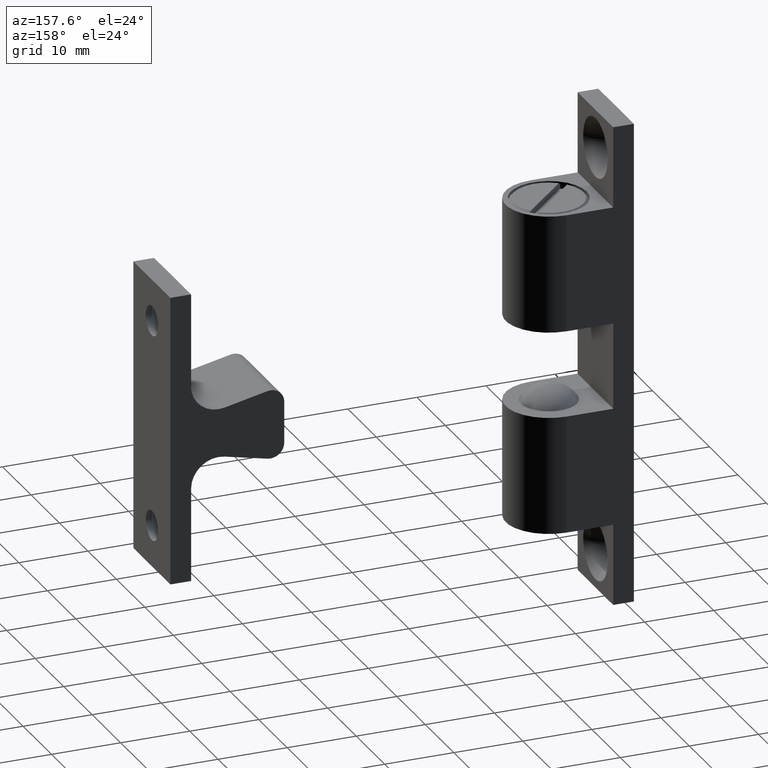
[diagram: clean part render]
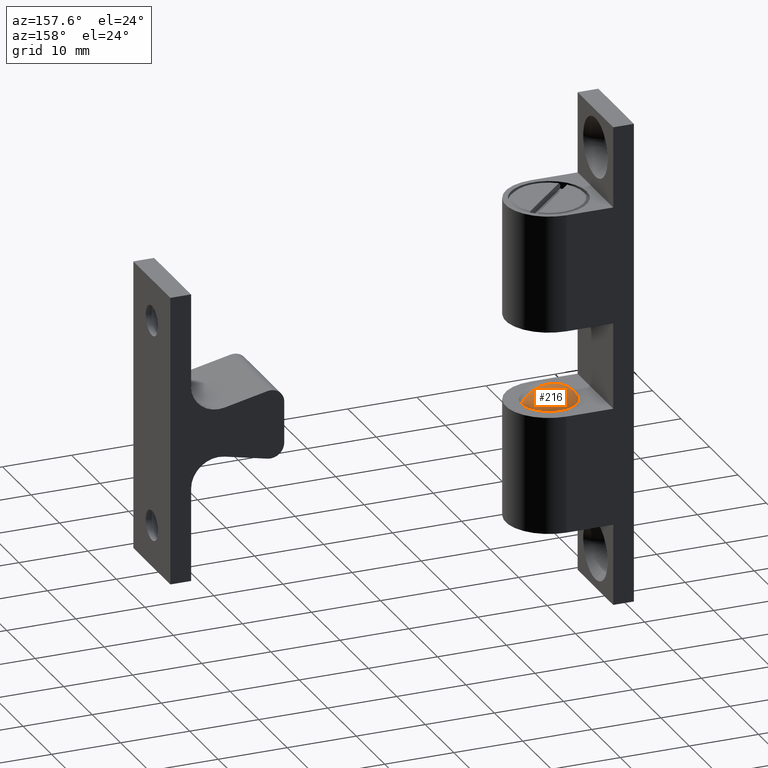
[diagram: same view with one face highlighted and labeled with its STEP entity id]
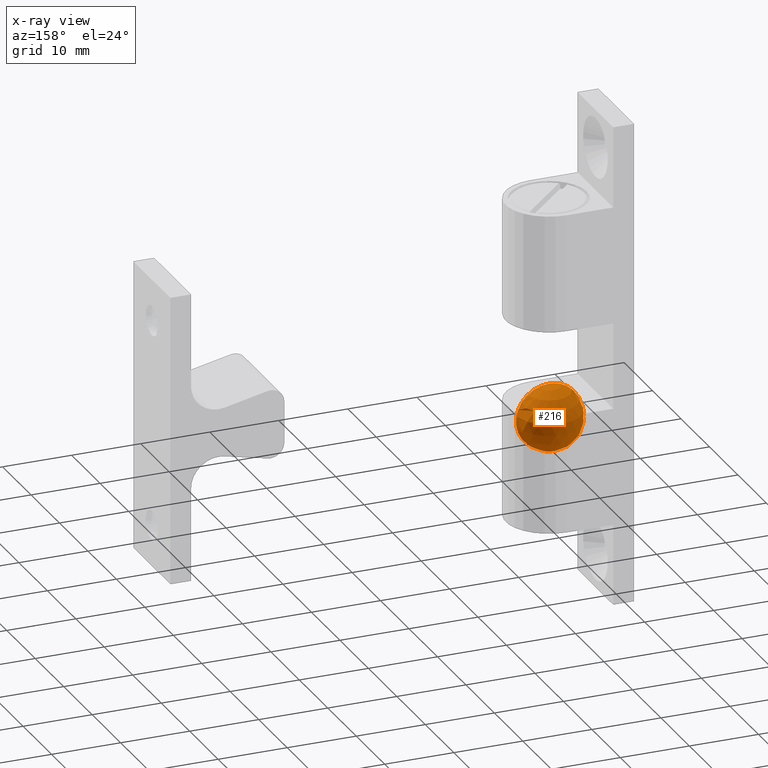
[diagram: x-ray of the same camera — body ghosted, the highlighted face saturated]
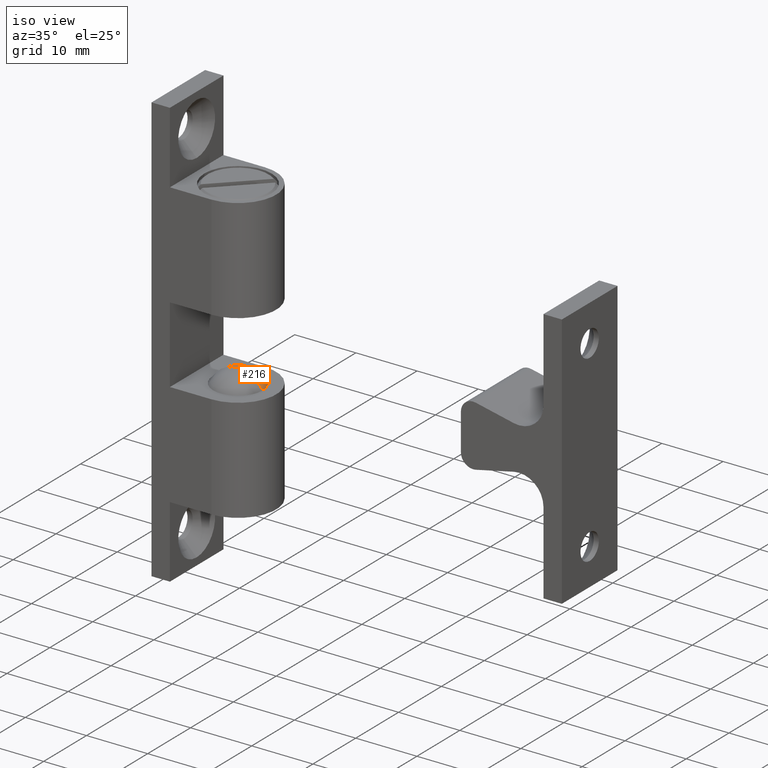
[diagram: same view with one face highlighted and labeled with its STEP entity id]
A machine part, auxiliary view. The second image highlights one B-rep face of the part: STEP entity #216.
The next image is the same camera in x-ray: the body ghosted, the highlighted face saturated — about 0% of this face is hidden behind the body in this view.
A second angle (iso view) of the same face is appended — the face is thin or edge-on in the first view.
In plain terms, the highlighted spherical surface has radius 4.7625 mm.
Its self-contained STEP definition (entity closure, byte-faithful):
#216=ADVANCED_FACE('',(#397),#396,.T.);
#396=SPHERICAL_SURFACE('',#1105,4.76250000000E+00);
#397=FACE_OUTER_BOUND('',#1106,.T.);
#1102=CARTESIAN_POINT('',(9.75000000000E+00,0.00000000000E+00,8.76250000000E+00));
#1103=DIRECTION('',(0.00000000000E+00,0.00000000000E+00,-1.00000000000E+00));
#1104=DIRECTION('',(-1.00000000000E+00,1.22460635382E-16,-0.00000000000E+00));
#1105=AXIS2_PLACEMENT_3D('',#1102,#1103,#1104);
#1106=EDGE_LOOP('',(#1520,#1521));
#1520=ORIENTED_EDGE('',*,*,#1840,.T.);
#1521=ORIENTED_EDGE('',*,*,#1841,.T.);
#1840=EDGE_CURVE('',#2172,#2173,#2174,.T.);
#1841=EDGE_CURVE('',#2173,#2172,#2180,.T.);
#2172=VERTEX_POINT('',#3256);
#2173=VERTEX_POINT('',#3257);
#2174=CIRCLE('',#3261,4.76250000000E+00);
#2180=(BOUNDED_CURVE() B_SPLINE_CURVE(2,(#3262,#3263,#3264,#3265,#3266),.UNSPECIFIED.,.F.,.F.) B_SPLINE_CURVE_WITH_KNOTS((3,2,3),(0.00000000000E+00,5.00000000000E-01,1.00000000000E+00),.UNSPECIFIED.) CURVE() GEOMETRIC_REPRESENTATION_ITEM() RATIONAL_B_SPLINE_CURVE((7.50000000000E-01,5.30330085890E-01,7.50000000000E-01,5.30330085890E-01,7.50000000000E-01)) REPRESENTATION_ITEM('') );
#3256=CARTESIAN_POINT('',(9.75000000000E+00,0.00000000000E+00,4.00000000000E+00));
#3257=CARTESIAN_POINT('',(9.75000000000E+00,0.00000000000E+00,1.35250000000E+01));
#3258=CARTESIAN_POINT('',(9.75000000000E+00,0.00000000000E+00,8.76250000000E+00));
#3259=DIRECTION('',(1.22460635382E-16,1.00000000000E+00,0.00000000000E+00));
#3260=DIRECTION('',(0.00000000000E+00,0.00000000000E+00,-1.00000000000E+00));
#3261=AXIS2_PLACEMENT_3D('',#3258,#3259,#3260);
#3262=CARTESIAN_POINT('',(9.75000000000E+00,-3.57106709384E-32,1.35250000000E+01));
#3263=CARTESIAN_POINT('',(1.45125000000E+01,-6.28036983474E-16,1.35250000000E+01));
#3264=CARTESIAN_POINT('',(1.45125000000E+01,-5.92118946467E-16,8.76250000000E+00));
#3265=CARTESIAN_POINT('',(1.45125000000E+01,-4.18691322316E-16,4.00000000000E+00));
#3266=CARTESIAN_POINT('',(9.75000000000E+00,-1.07132012815E-31,4.00000000000E+00));